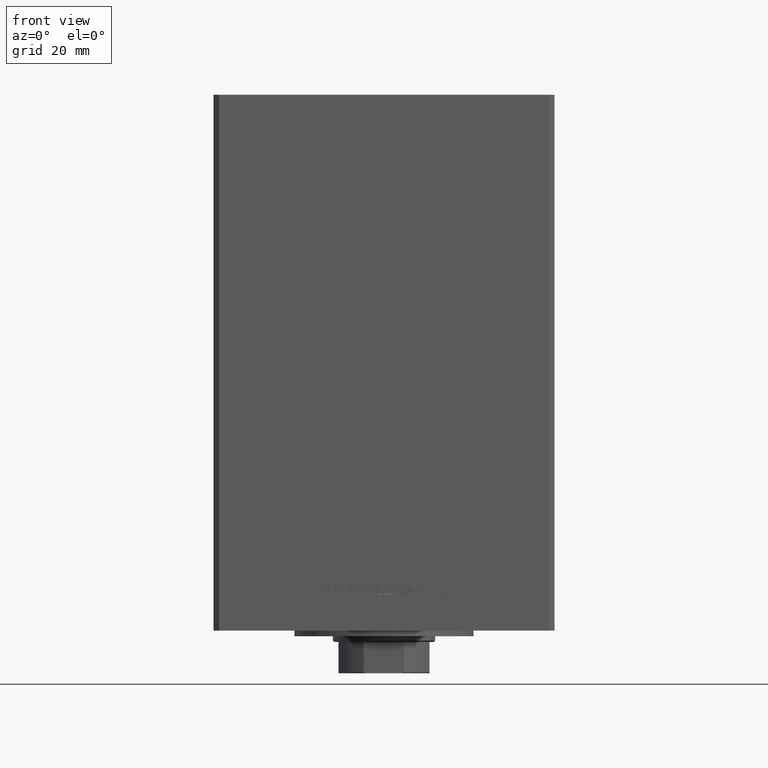
[diagram: clean part render]
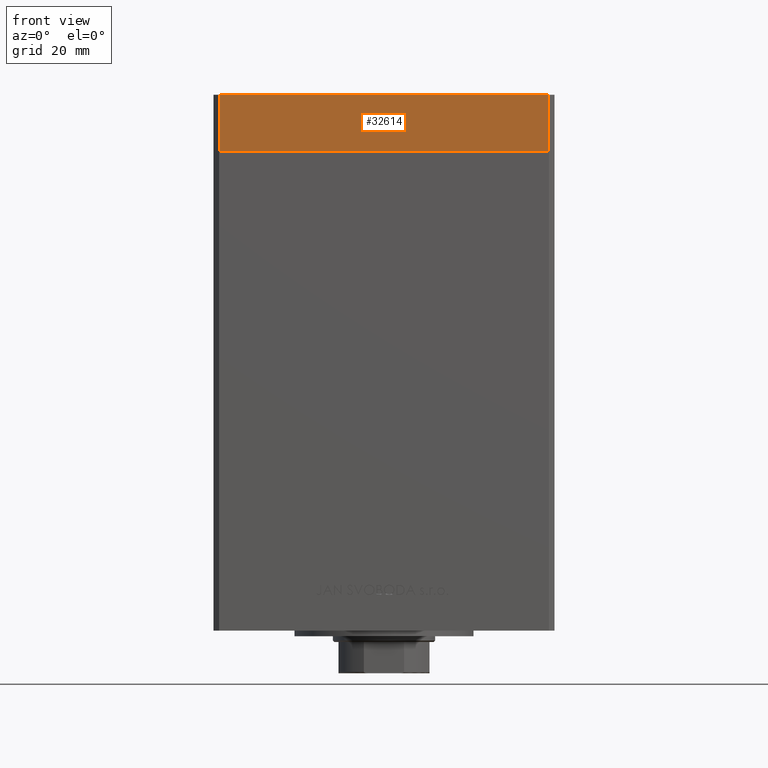
[diagram: same view with one face highlighted and labeled with its STEP entity id]
A machine part, front view. The second image highlights one B-rep face of the part: STEP entity #32614.
In plain terms, the highlighted planar face has unit normal (0, -1, 0).
Its self-contained STEP definition (entity closure, byte-faithful):
#4743 = LINE ( 'NONE', #20133, #34974 ) ;
#5165 = CARTESIAN_POINT ( 'NONE',  ( 58.00000000000000000, -51.00000000000000711, -20.00000000000000000 ) ) ;
#6376 = LINE ( 'NONE', #44125, #10145 ) ;
#6429 = LINE ( 'NONE', #18089, #41157 ) ;
#6990 = ORIENTED_EDGE ( 'NONE', *, *, #10003, .F. ) ;
#7116 = CARTESIAN_POINT ( 'NONE',  ( -57.99999999999997868, -51.00000000000001421, 0.000000000000000000 ) ) ;
#9420 = PLANE ( 'NONE',  #28921 ) ;
#10003 = EDGE_CURVE ( 'NONE', #21329, #23344, #6376, .T. ) ;
#10145 = VECTOR ( 'NONE', #43640, 1000.000000000000000 ) ;
#10648 = ORIENTED_EDGE ( 'NONE', *, *, #43278, .T. ) ;
#11748 = VERTEX_POINT ( 'NONE', #5165 ) ;
#12598 = EDGE_CURVE ( 'NONE', #11748, #29544, #4743, .T. ) ;
#14074 = CARTESIAN_POINT ( 'NONE',  ( -57.99999999999997868, -51.00000000000001421, -20.00000000000000000 ) ) ;
#15437 = CARTESIAN_POINT ( 'NONE',  ( 58.00000000000000000, -51.00000000000000711, 0.000000000000000000 ) ) ;
#18089 = CARTESIAN_POINT ( 'NONE',  ( -57.99999999999997868, -51.00000000000001421, -20.00000000000000000 ) ) ;
#19461 = EDGE_LOOP ( 'NONE', ( #47090, #6990, #10648, #25066 ) ) ;
#20133 = CARTESIAN_POINT ( 'NONE',  ( 58.00000000000000000, -51.00000000000000711, -20.00000000000000000 ) ) ;
#20827 = DIRECTION ( 'NONE',  ( 1.000000000000000000, 1.196361017915039486E-16, 0.000000000000000000 ) ) ;
#21329 = VERTEX_POINT ( 'NONE', #14074 ) ;
#21425 = EDGE_CURVE ( 'NONE', #23344, #29544, #41158, .T. ) ;
#22262 = DIRECTION ( 'NONE',  ( 1.000000000000000000, 1.196361017915039486E-16, 0.000000000000000000 ) ) ;
#23344 = VERTEX_POINT ( 'NONE', #42728 ) ;
#25066 = ORIENTED_EDGE ( 'NONE', *, *, #12598, .T. ) ;
#27562 = FACE_OUTER_BOUND ( 'NONE', #19461, .T. ) ;
#28921 = AXIS2_PLACEMENT_3D ( 'NONE', #31772, #39725, #20827 ) ;
#29544 = VERTEX_POINT ( 'NONE', #15437 ) ;
#31772 = CARTESIAN_POINT ( 'NONE',  ( -57.99999999999997868, -51.00000000000001421, -20.00000000000000000 ) ) ;
#32614 = ADVANCED_FACE ( 'NONE', ( #27562 ), #9420, .T. ) ;
#34974 = VECTOR ( 'NONE', #35056, 1000.000000000000000 ) ;
#35056 = DIRECTION ( 'NONE',  ( 0.000000000000000000, 0.000000000000000000, 1.000000000000000000 ) ) ;
#36731 = DIRECTION ( 'NONE',  ( 1.000000000000000000, 1.196361017915039486E-16, 0.000000000000000000 ) ) ;
#39725 = DIRECTION ( 'NONE',  ( 1.196361017915039486E-16, -1.000000000000000000, 0.000000000000000000 ) ) ;
#41157 = VECTOR ( 'NONE', #36731, 1000.000000000000000 ) ;
#41158 = LINE ( 'NONE', #7116, #48482 ) ;
#42728 = CARTESIAN_POINT ( 'NONE',  ( -57.99999999999997868, -51.00000000000001421, 0.000000000000000000 ) ) ;
#43278 = EDGE_CURVE ( 'NONE', #21329, #11748, #6429, .T. ) ;
#43640 = DIRECTION ( 'NONE',  ( 0.000000000000000000, 0.000000000000000000, 1.000000000000000000 ) ) ;
#44125 = CARTESIAN_POINT ( 'NONE',  ( -57.99999999999997868, -51.00000000000001421, -20.00000000000000000 ) ) ;
#47090 = ORIENTED_EDGE ( 'NONE', *, *, #21425, .F. ) ;
#48482 = VECTOR ( 'NONE', #22262, 1000.000000000000000 ) ;